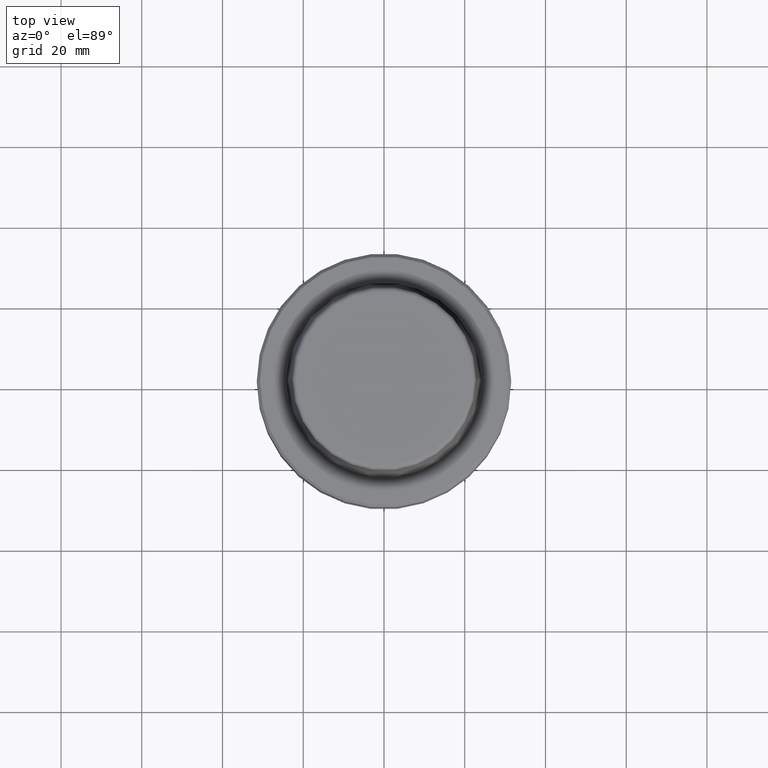
[diagram: clean part render]
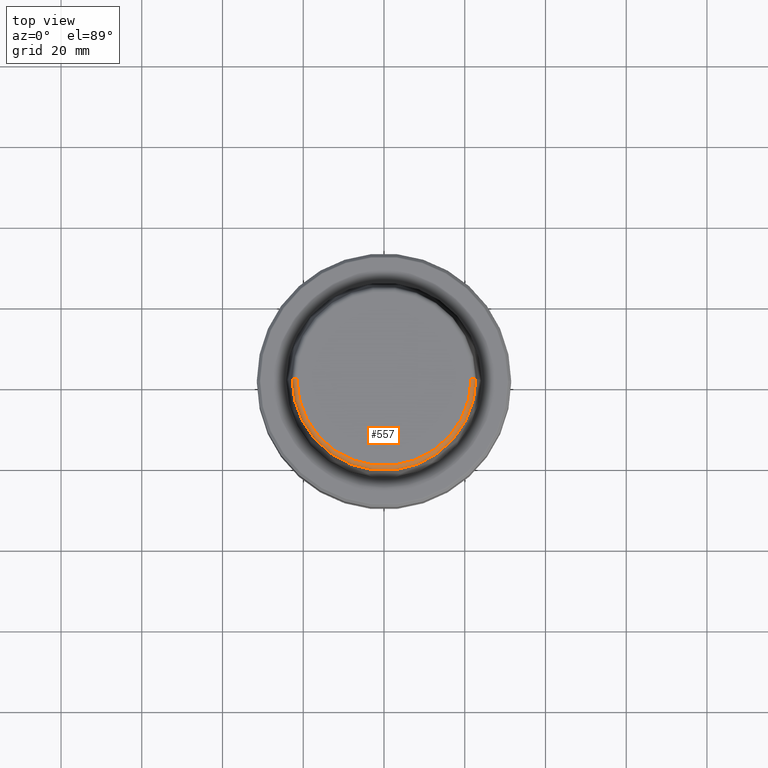
[diagram: same view with one face highlighted and labeled with its STEP entity id]
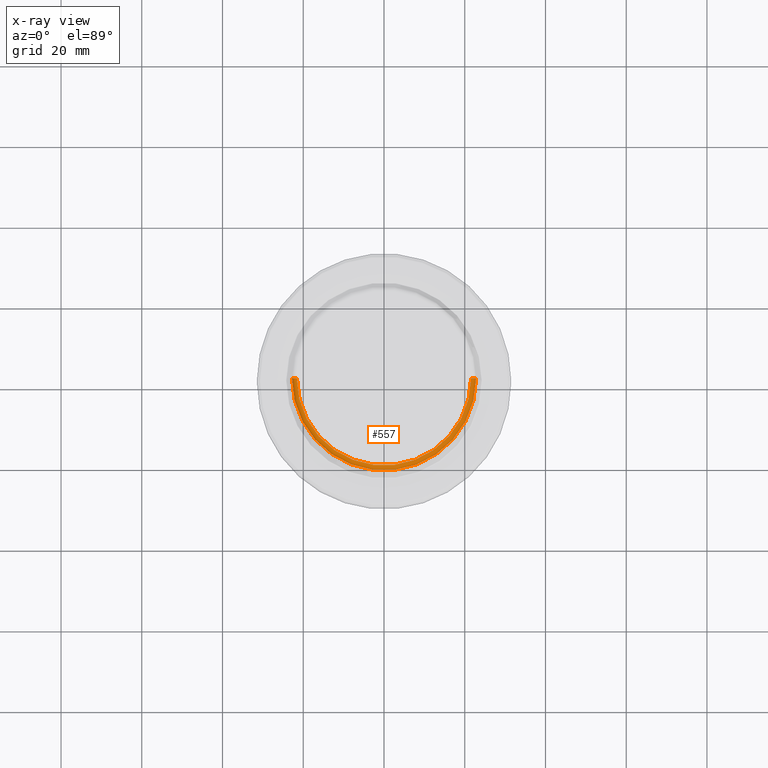
[diagram: x-ray of the same camera — body ghosted, the highlighted face saturated]
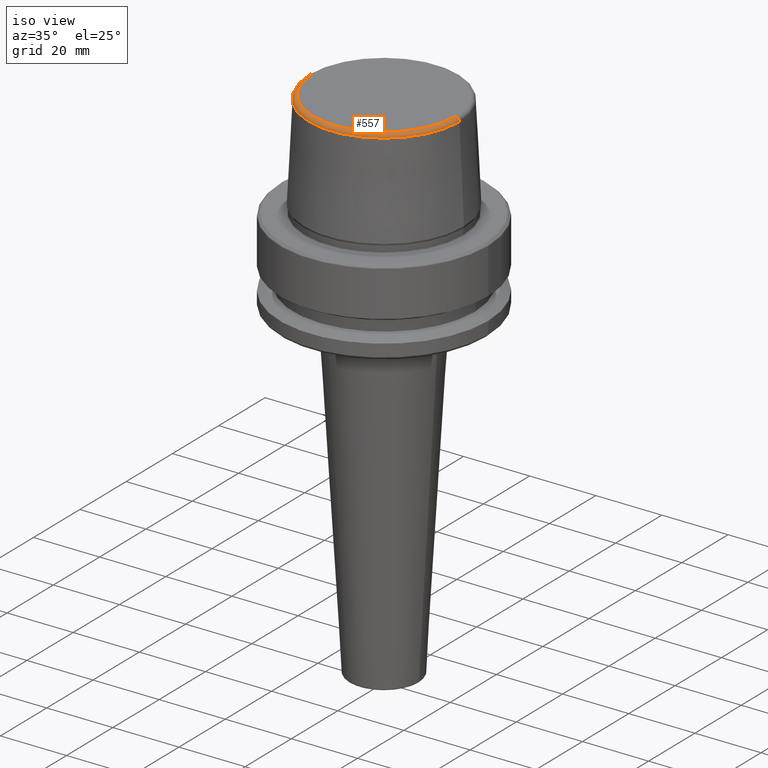
[diagram: same view with one face highlighted and labeled with its STEP entity id]
A machine part, top view. The second image highlights one B-rep face of the part: STEP entity #557.
The next image is the same camera in x-ray: the body ghosted, the highlighted face saturated — about 0% of this face is hidden behind the body in this view.
A second angle (iso view) of the same face is appended — the face is thin or edge-on in the first view.
In plain terms, the highlighted toroidal blend (fillet) surface has major radius 21.5811 mm and minor (blend) radius 1.2 mm.
Its self-contained STEP definition (entity closure, byte-faithful):
#18 = CARTESIAN_POINT ( 'NONE',  ( 21.58108272732117100, 0.0000000000000000000, 31.89999999999999900 ) ) ;
#46 = CARTESIAN_POINT ( 'NONE',  ( -21.58108272732117100, 2.716307157494421400E-015, 31.89999999999999900 ) ) ;
#47 = EDGE_CURVE ( 'NONE', #720, #1100, #272, .T. ) ;
#48 = CARTESIAN_POINT ( 'NONE',  ( 0.0000000000000000000, 0.0000000000000000000, 30.69999999999999200 ) ) ;
#121 = EDGE_LOOP ( 'NONE', ( #816, #340, #1127, #947 ) ) ;
#126 = CARTESIAN_POINT ( 'NONE',  ( 22.77957961851797100, 2.876386432489616700E-015, 30.76004333261571900 ) ) ;
#185 = TOROIDAL_SURFACE ( 'NONE', #1026, 21.58108272732117100, 1.200000000000003100 ) ;
#243 = CIRCLE ( 'NONE', #939, 22.77957961851797100 ) ;
#272 = CIRCLE ( 'NONE', #365, 1.200000000000003100 ) ;
#297 = DIRECTION ( 'NONE',  ( 0.0000000000000000000, -1.000000000000000000, 0.0000000000000000000 ) ) ;
#330 = CARTESIAN_POINT ( 'NONE',  ( 0.0000000000000000000, 0.0000000000000000000, 30.76004333261571900 ) ) ;
#331 = DIRECTION ( 'NONE',  ( -0.0000000000000000000, -0.0000000000000000000, 1.000000000000000000 ) ) ;
#340 = ORIENTED_EDGE ( 'NONE', *, *, #537, .T. ) ;
#365 = AXIS2_PLACEMENT_3D ( 'NONE', #447, #1131, #542 ) ;
#432 = DIRECTION ( 'NONE',  ( 1.000000000000000000, 0.0000000000000000000, 0.0000000000000000000 ) ) ;
#447 = CARTESIAN_POINT ( 'NONE',  ( -21.58108272732117100, 2.642920388414810300E-015, 30.69999999999999200 ) ) ;
#480 = CIRCLE ( 'NONE', #763, 1.200000000000003100 ) ;
#505 = CIRCLE ( 'NONE', #936, 21.58108272732117100 ) ;
#537 = EDGE_CURVE ( 'NONE', #720, #1157, #243, .T. ) ;
#542 = DIRECTION ( 'NONE',  ( -1.000000000000000000, 1.224646799147353200E-016, 0.0000000000000000000 ) ) ;
#557 = ADVANCED_FACE ( 'NONE', ( #937 ), #185, .T. ) ;
#720 = VERTEX_POINT ( 'NONE', #904 ) ;
#763 = AXIS2_PLACEMENT_3D ( 'NONE', #886, #297, #986 ) ;
#816 = ORIENTED_EDGE ( 'NONE', *, *, #47, .F. ) ;
#846 = EDGE_CURVE ( 'NONE', #1157, #872, #480, .T. ) ;
#872 = VERTEX_POINT ( 'NONE', #18 ) ;
#886 = CARTESIAN_POINT ( 'NONE',  ( 21.58108272732117100, 0.0000000000000000000, 30.69999999999999200 ) ) ;
#904 = CARTESIAN_POINT ( 'NONE',  ( -22.77957961851797100, 0.0000000000000000000, 30.76004333261571900 ) ) ;
#927 = CARTESIAN_POINT ( 'NONE',  ( 0.0000000000000000000, 0.0000000000000000000, 31.89999999999999900 ) ) ;
#930 = DIRECTION ( 'NONE',  ( -0.0000000000000000000, -0.0000000000000000000, 1.000000000000000000 ) ) ;
#936 = AXIS2_PLACEMENT_3D ( 'NONE', #927, #331, #1020 ) ;
#937 = FACE_OUTER_BOUND ( 'NONE', #121, .T. ) ;
#939 = AXIS2_PLACEMENT_3D ( 'NONE', #330, #1019, #432 ) ;
#947 = ORIENTED_EDGE ( 'NONE', *, *, #1103, .F. ) ;
#986 = DIRECTION ( 'NONE',  ( 0.0000000000000000000, 0.0000000000000000000, -1.000000000000000000 ) ) ;
#1019 = DIRECTION ( 'NONE',  ( -0.0000000000000000000, -0.0000000000000000000, 1.000000000000000000 ) ) ;
#1020 = DIRECTION ( 'NONE',  ( 1.000000000000000000, 0.0000000000000000000, 0.0000000000000000000 ) ) ;
#1026 = AXIS2_PLACEMENT_3D ( 'NONE', #48, #930, #1119 ) ;
#1100 = VERTEX_POINT ( 'NONE', #46 ) ;
#1103 = EDGE_CURVE ( 'NONE', #1100, #872, #505, .T. ) ;
#1119 = DIRECTION ( 'NONE',  ( 1.000000000000000000, 0.0000000000000000000, 0.0000000000000000000 ) ) ;
#1127 = ORIENTED_EDGE ( 'NONE', *, *, #846, .T. ) ;
#1131 = DIRECTION ( 'NONE',  ( 1.224646799147353200E-016, 1.000000000000000000, 0.0000000000000000000 ) ) ;
#1157 = VERTEX_POINT ( 'NONE', #126 ) ;